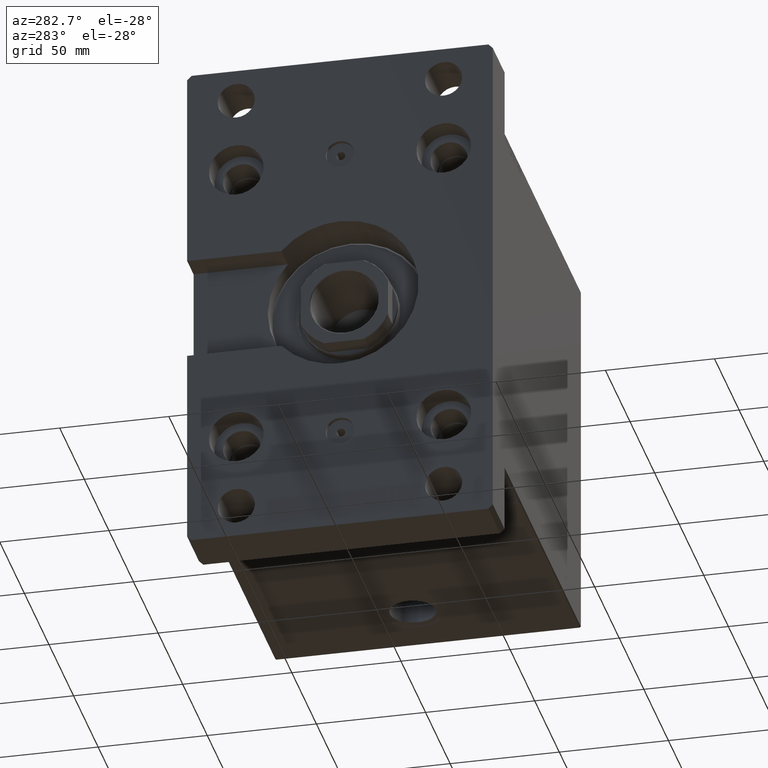
[diagram: clean part render]
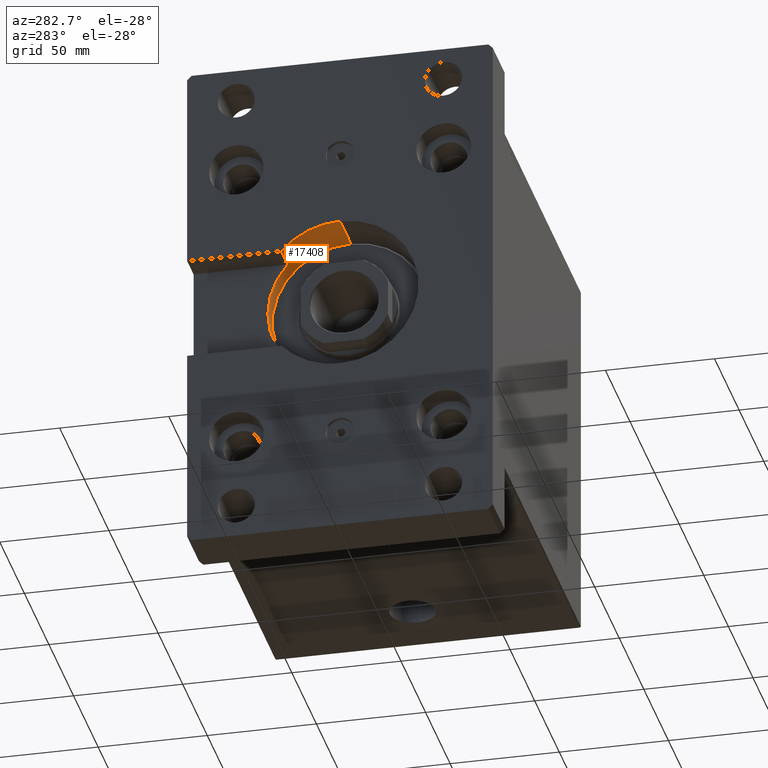
[diagram: same view with one face highlighted and labeled with its STEP entity id]
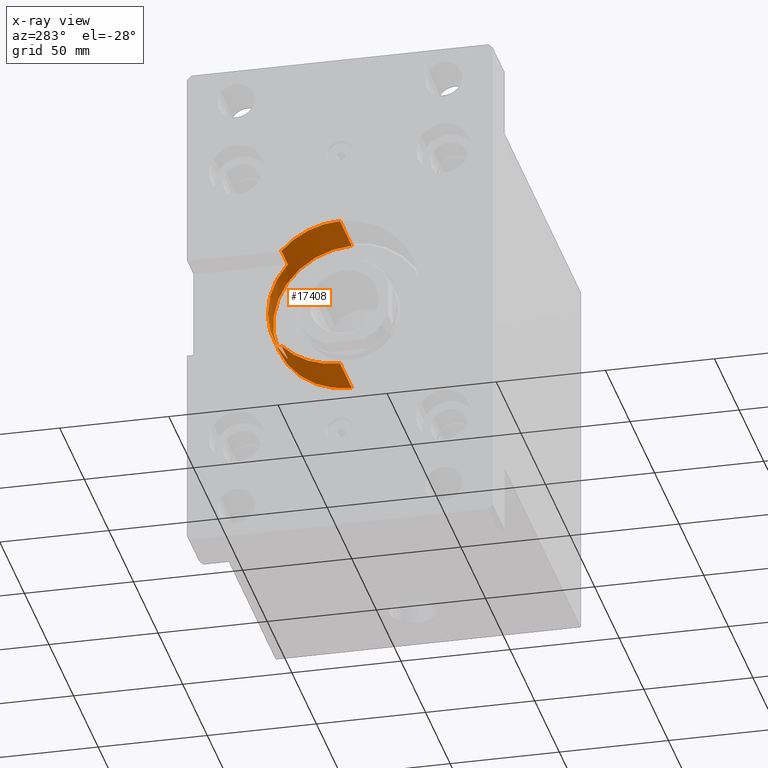
[diagram: x-ray of the same camera — body ghosted, the highlighted face saturated]
A machine part, auxiliary view. The second image highlights one B-rep face of the part: STEP entity #17408.
The next image is the same camera in x-ray: the body ghosted, the highlighted face saturated — about 0% of this face is hidden behind the body in this view.
In plain terms, the highlighted cylindrical surface (partial cylindrical patch) has radius 36 mm, axis along (-1, 0, 0).
Its self-contained STEP definition (entity closure, byte-faithful):
#1909 = EDGE_CURVE ( 'NONE', #4879, #22962, #25564, .T. ) ;
#2461 = ORIENTED_EDGE ( 'NONE', *, *, #28694, .T. ) ;
#3008 = CARTESIAN_POINT ( 'NONE',  ( -24.00000000000000000, 26.83281572999747411, 11.00000000000000178 ) ) ;
#3534 = AXIS2_PLACEMENT_3D ( 'NONE', #44078, #22222, #40224 ) ;
#3986 = CARTESIAN_POINT ( 'NONE',  ( -36.00000000000000000, 4.408728476930470856E-15, 0.000000000000000000 ) ) ;
#3987 = ORIENTED_EDGE ( 'NONE', *, *, #42796, .F. ) ;
#4879 = VERTEX_POINT ( 'NONE', #9675 ) ;
#6065 = CARTESIAN_POINT ( 'NONE',  ( 24.00000000000000000, 26.83281572999747411, 11.00000000000000178 ) ) ;
#6443 = EDGE_CURVE ( 'NONE', #20189, #20788, #47217, .T. ) ;
#7265 = DIRECTION ( 'NONE',  ( -0.000000000000000000, 0.000000000000000000, 1.000000000000000000 ) ) ;
#7880 = DIRECTION ( 'NONE',  ( -0.000000000000000000, -0.000000000000000000, 1.000000000000000000 ) ) ;
#9675 = CARTESIAN_POINT ( 'NONE',  ( -24.00000000000000000, 26.83281572999747411, 24.00000000000000000 ) ) ;
#9683 = ORIENTED_EDGE ( 'NONE', *, *, #1909, .T. ) ;
#10506 = LINE ( 'NONE', #20859, #39247 ) ;
#10735 = DIRECTION ( 'NONE',  ( -0.000000000000000000, -0.000000000000000000, 1.000000000000000000 ) ) ;
#11109 = AXIS2_PLACEMENT_3D ( 'NONE', #37824, #38314, #16213 ) ;
#11815 = DIRECTION ( 'NONE',  ( 1.000000000000000000, 0.000000000000000000, 0.000000000000000000 ) ) ;
#12165 = CARTESIAN_POINT ( 'NONE',  ( 36.00000000000000000, 0.000000000000000000, 24.00000000000000000 ) ) ;
#15091 = CARTESIAN_POINT ( 'NONE',  ( 0.000000000000000000, 0.000000000000000000, 0.000000000000000000 ) ) ;
#15811 = DIRECTION ( 'NONE',  ( 1.000000000000000000, 0.000000000000000000, 0.000000000000000000 ) ) ;
#15862 = ORIENTED_EDGE ( 'NONE', *, *, #42560, .F. ) ;
#16213 = DIRECTION ( 'NONE',  ( 1.000000000000000000, 0.000000000000000000, 0.000000000000000000 ) ) ;
#16282 = VECTOR ( 'NONE', #42655, 1000.000000000000000 ) ;
#16583 = CIRCLE ( 'NONE', #3534, 36.00000000000000000 ) ;
#17408 = ADVANCED_FACE ( 'NONE', ( #33336 ), #37906, .F. ) ;
#18608 = VERTEX_POINT ( 'NONE', #3986 ) ;
#20032 = VERTEX_POINT ( 'NONE', #25634 ) ;
#20189 = VERTEX_POINT ( 'NONE', #12165 ) ;
#20431 = CIRCLE ( 'NONE', #28111, 36.00000000000000000 ) ;
#20758 = DIRECTION ( 'NONE',  ( 1.000000000000000000, 0.000000000000000000, 0.000000000000000000 ) ) ;
#20788 = VERTEX_POINT ( 'NONE', #47046 ) ;
#20859 = CARTESIAN_POINT ( 'NONE',  ( -36.00000000000000000, 4.408728476930470856E-15, 0.000000000000000000 ) ) ;
#21917 = DIRECTION ( 'NONE',  ( -0.000000000000000000, -0.000000000000000000, 1.000000000000000000 ) ) ;
#22222 = DIRECTION ( 'NONE',  ( -0.000000000000000000, -0.000000000000000000, -1.000000000000000000 ) ) ;
#22962 = VERTEX_POINT ( 'NONE', #35083 ) ;
#23842 = CARTESIAN_POINT ( 'NONE',  ( 24.00000000000000000, 26.83281572999747411, 11.00000000000000178 ) ) ;
#24668 = CARTESIAN_POINT ( 'NONE',  ( -24.00000000000000000, 26.83281572999747411, 11.00000000000000178 ) ) ;
#25564 = CIRCLE ( 'NONE', #32484, 36.00000000000000000 ) ;
#25634 = CARTESIAN_POINT ( 'NONE',  ( 36.00000000000000000, 0.000000000000000000, 0.000000000000000000 ) ) ;
#26178 = EDGE_CURVE ( 'NONE', #32460, #20788, #27199, .T. ) ;
#26477 = CARTESIAN_POINT ( 'NONE',  ( 0.000000000000000000, 0.000000000000000000, 24.00000000000000000 ) ) ;
#26977 = ORIENTED_EDGE ( 'NONE', *, *, #6443, .T. ) ;
#27199 = LINE ( 'NONE', #23842, #30021 ) ;
#28111 = AXIS2_PLACEMENT_3D ( 'NONE', #39010, #42378, #20758 ) ;
#28267 = EDGE_CURVE ( 'NONE', #18608, #22962, #10506, .T. ) ;
#28694 = EDGE_CURVE ( 'NONE', #46470, #4879, #36380, .T. ) ;
#29837 = LINE ( 'NONE', #44482, #45490 ) ;
#29882 = EDGE_CURVE ( 'NONE', #20032, #20189, #29837, .T. ) ;
#30021 = VECTOR ( 'NONE', #34402, 1000.000000000000000 ) ;
#32460 = VERTEX_POINT ( 'NONE', #6065 ) ;
#32484 = AXIS2_PLACEMENT_3D ( 'NONE', #26477, #7265, #11815 ) ;
#33336 = FACE_OUTER_BOUND ( 'NONE', #47450, .T. ) ;
#34402 = DIRECTION ( 'NONE',  ( -0.000000000000000000, -0.000000000000000000, 1.000000000000000000 ) ) ;
#35083 = CARTESIAN_POINT ( 'NONE',  ( -36.00000000000000000, 4.408728476930470856E-15, 24.00000000000000000 ) ) ;
#36380 = LINE ( 'NONE', #3008, #16282 ) ;
#36679 = ORIENTED_EDGE ( 'NONE', *, *, #29882, .T. ) ;
#37824 = CARTESIAN_POINT ( 'NONE',  ( 0.000000000000000000, 0.000000000000000000, 24.00000000000000000 ) ) ;
#37906 = CYLINDRICAL_SURFACE ( 'NONE', #39003, 36.00000000000000000 ) ;
#38314 = DIRECTION ( 'NONE',  ( -0.000000000000000000, 0.000000000000000000, 1.000000000000000000 ) ) ;
#39003 = AXIS2_PLACEMENT_3D ( 'NONE', #15091, #7880, #15811 ) ;
#39010 = CARTESIAN_POINT ( 'NONE',  ( 0.000000000000000000, 0.000000000000000000, 0.000000000000000000 ) ) ;
#39247 = VECTOR ( 'NONE', #10735, 1000.000000000000000 ) ;
#40039 = ORIENTED_EDGE ( 'NONE', *, *, #26178, .F. ) ;
#40224 = DIRECTION ( 'NONE',  ( 1.000000000000000000, 0.000000000000000000, 0.000000000000000000 ) ) ;
#42378 = DIRECTION ( 'NONE',  ( 0.000000000000000000, 0.000000000000000000, 1.000000000000000000 ) ) ;
#42560 = EDGE_CURVE ( 'NONE', #46470, #32460, #16583, .T. ) ;
#42655 = DIRECTION ( 'NONE',  ( -0.000000000000000000, -0.000000000000000000, 1.000000000000000000 ) ) ;
#42796 = EDGE_CURVE ( 'NONE', #20032, #18608, #20431, .T. ) ;
#44078 = CARTESIAN_POINT ( 'NONE',  ( 0.000000000000000000, 0.000000000000000000, 11.00000000000000178 ) ) ;
#44482 = CARTESIAN_POINT ( 'NONE',  ( 36.00000000000000000, 0.000000000000000000, 0.000000000000000000 ) ) ;
#45490 = VECTOR ( 'NONE', #21917, 1000.000000000000000 ) ;
#46470 = VERTEX_POINT ( 'NONE', #24668 ) ;
#47046 = CARTESIAN_POINT ( 'NONE',  ( 24.00000000000000000, 26.83281572999747411, 24.00000000000000000 ) ) ;
#47217 = CIRCLE ( 'NONE', #11109, 36.00000000000000000 ) ;
#47261 = ORIENTED_EDGE ( 'NONE', *, *, #28267, .F. ) ;
#47450 = EDGE_LOOP ( 'NONE', ( #47261, #3987, #36679, #26977, #40039, #15862, #2461, #9683 ) ) ;